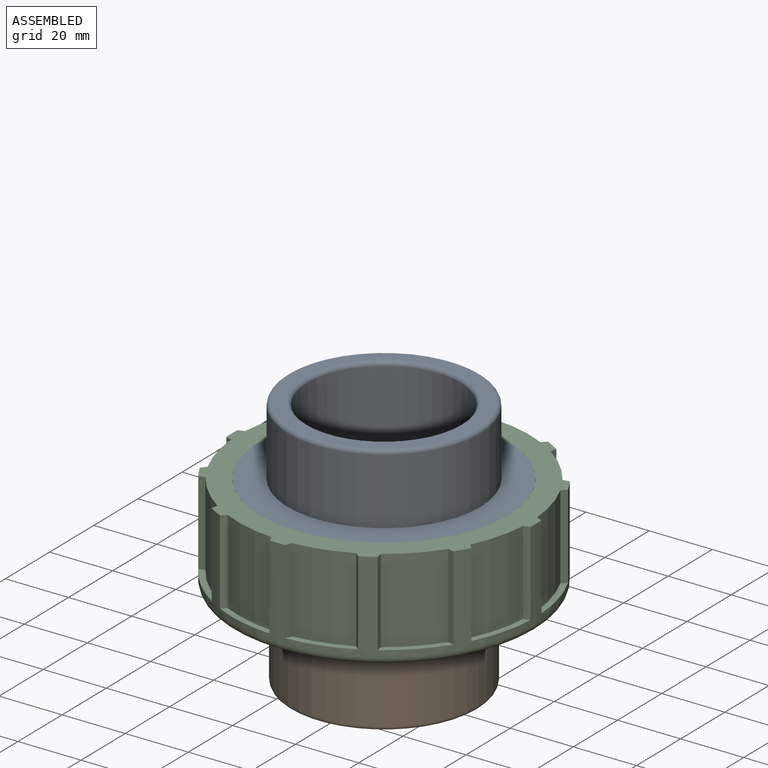
[diagram: assembled view]
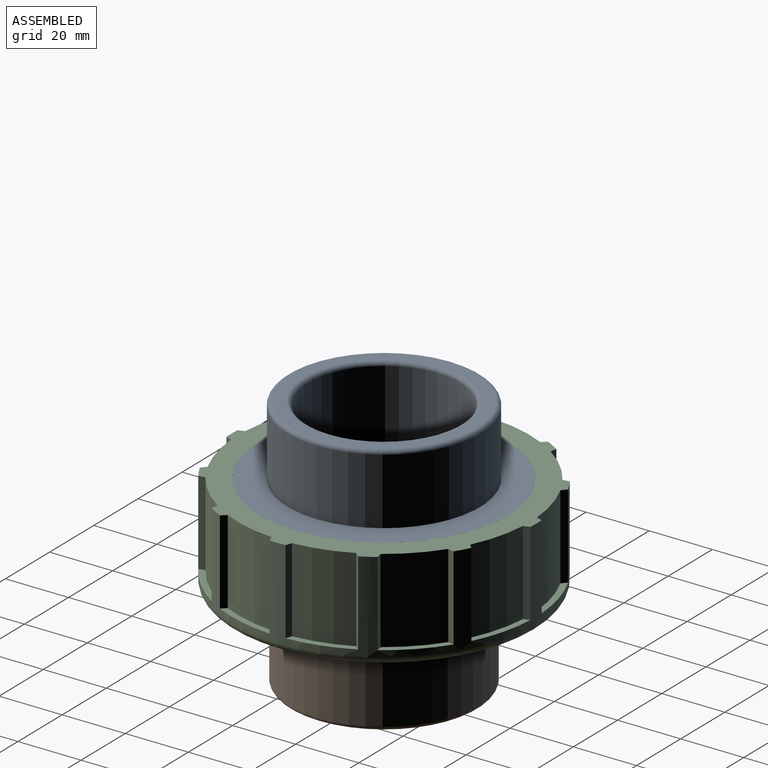
[diagram: assembled view, second angle]
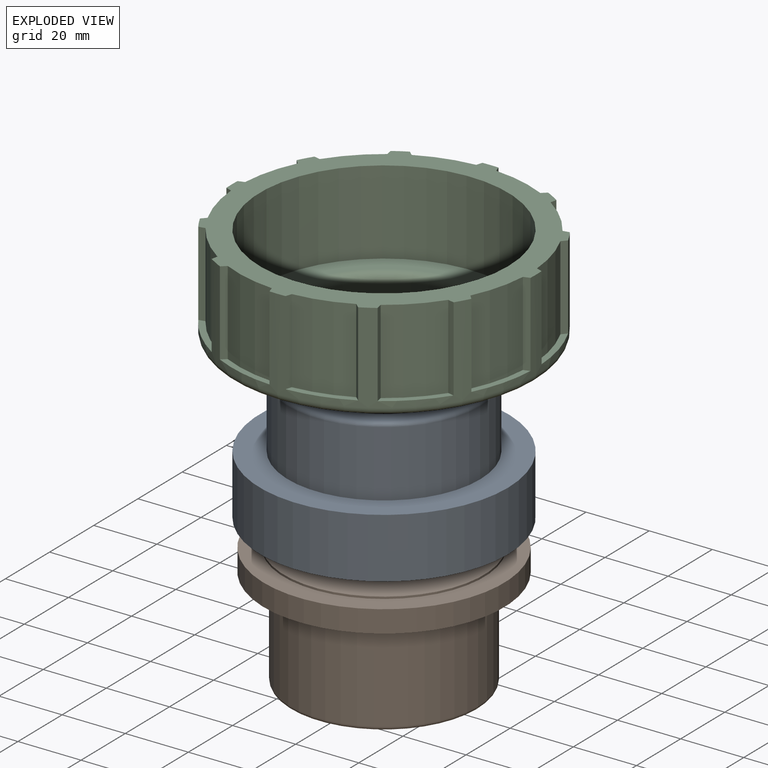
[diagram: exploded view]
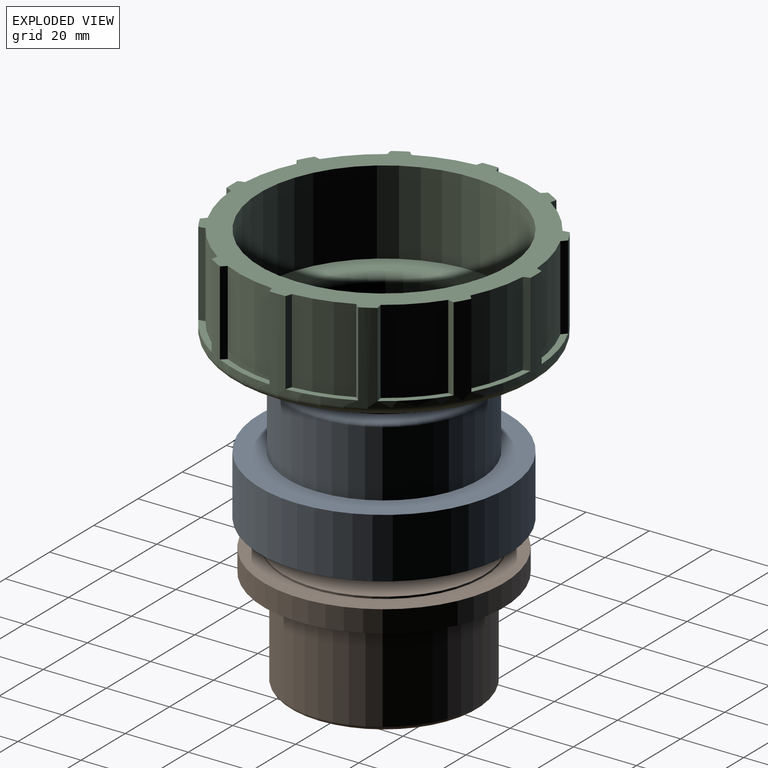
[diagram: exploded view, second angle]
ASSEMBLY  parts=3 mates=2
PART A: 14 faces, bbox 78.7x78.7x41.3 mm
  f0: plane 60.96x60.96mm, normal (0,0,-1), area 1925.5mm2, adj f1,f10
  f1: cylinder r=30.48mm len=60.96mm, axis (0,0,1), area 1945.8mm2, adj f0,f11
  f2: cylinder r=33.02mm len=66.04mm, axis (0,0,1), area 2107.9mm2, adj f3,f11
  f3: plane 78.74x78.74mm, normal (0,0,-1), area 1444.1mm2, adj f2,f4
  f4: cylinder r=39.37mm len=78.74mm, axis (0,0,1), area 4712.4mm2, adj f3,f5
  f5: plane 78.74x78.74mm, normal (0,0,1), area 1950.8mm2, adj f4,f6
  f6: cylinder r=30.48mm len=60.96mm, axis (0,0,1), area 4013.1mm2, adj f5,f12
  f7: plane 58.42x58.42mm, normal (0,0,1), area 653.7mm2, adj f12,f13
  f8: cylinder r=24.13mm len=48.26mm, axis (0,0,1), area 5102.5mm2, adj f9,f13
  f9: plane 48.26x48.26mm, normal (0,0,1), area 836.1mm2, adj f8,f10
  f10: cylinder r=17.78mm len=35.56mm, axis (0,0,1), area 709.4mm2, adj f0,f9
  f11: torus R=31.75mm, axis (0,0,-1), area 795.9mm2, adj f1,f2
  f12: torus R=29.21mm, axis (0,0,-1), area 376.3mm2, adj f6,f7
  f13: torus R=25.4mm, axis (0,0,-1), area 308.2mm2, adj f7,f8
PART B: 12 faces, bbox 76.2x76.2x39.4 mm
  f0: plane 63.5x63.5mm, normal (0,0,-1), area 2026.8mm2, adj f1,f9
  f1: cylinder r=31.75mm len=63.5mm, axis (0,0,1), area 126.7mm2, adj f0,f2
  f2: plane 76.2x76.2mm, normal (0,0,-1), area 1393.4mm2, adj f1,f3
  f3: cylinder r=38.1mm len=76.2mm, axis (0,0,1), area 1672.1mm2, adj f2,f4
  f4: plane 76.2x76.2mm, normal (0,0,1), area 1762.1mm2, adj f3,f5
  f5: cylinder r=29.84mm len=59.69mm, axis (0,0,1), area 5715.7mm2, adj f4,f10
  f6: plane 57.15x57.15mm, normal (0,0,1), area 538.4mm2, adj f10,f11
  f7: cylinder r=24.13mm len=48.26mm, axis (0,0,1), area 5198.8mm2, adj f8,f11
  f8: plane 48.26x48.26mm, normal (0,0,1), area 689.1mm2, adj f7,f9
  f9: cylinder r=19.05mm len=38.1mm, axis (0,0,1), area 456mm2, adj f0,f8
  f10: torus R=28.57mm, axis (0,0,1), area 368.3mm2, adj f5,f6
  f11: torus R=25.4mm, axis (0,0,1), area 308.2mm2, adj f6,f7
PART C: 57 faces, bbox 104.5x104.5x34.3 mm
  f0: cylinder r=46.35mm len=26.67mm, axis (0,0,-1), area 477.8mm2, adj f1,f37,f38,f53
  f1: plane 26.67x1.95mm, normal (0.31,-0.95,0), area 54.6mm2, adj f0,f29,f38,f53
  f2: plane 26.67x1.95mm, normal (0.31,0.95,0), area 54.6mm2, adj f3,f29,f38,f42
  f3: cylinder r=46.35mm len=26.67mm, axis (0,0,-1), area 477.8mm2, adj f2,f4,f38,f42
  f4: plane 26.67x1.52mm, normal (0.74,-0.67,0), area 54.6mm2, adj f3,f29,f38,f42
  f5: plane 26.67x2mm, normal (-0.21,0.98,0), area 54.6mm2, adj f6,f29,f38,f43
  f6: cylinder r=46.35mm len=26.67mm, axis (0,0,-1), area 477.8mm2, adj f5,f7,f38,f43
  f7: plane 26.67x2mm, normal (0.98,-0.21,0), area 54.6mm2, adj f6,f29,f38,f43
  f8: plane 26.67x1.52mm, normal (-0.67,0.74,0), area 54.6mm2, adj f9,f29,f38,f44
  f9: cylinder r=46.35mm len=26.67mm, axis (0,0,-1), area 477.8mm2, adj f8,f10,f38,f44
  f10: plane 26.67x1.95mm, normal (0.95,0.31,0), area 54.6mm2, adj f9,f29,f38,f44
  f11: plane 26.67x1.95mm, normal (-0.95,0.31,0), area 54.6mm2, adj f12,f29,f38,f45
  f12: cylinder r=46.35mm len=26.67mm, axis (0,0,-1), area 477.8mm2, adj f11,f13,f38,f45
  f13: plane 26.67x1.52mm, normal (0.67,0.74,0), area 54.6mm2, adj f12,f29,f38,f45
  f14: plane 26.67x2mm, normal (-0.98,-0.21,0), area 54.6mm2, adj f15,f29,f38,f46
  f15: cylinder r=46.35mm len=26.67mm, axis (0,0,-1), area 477.8mm2, adj f14,f16,f38,f46
  f16: plane 26.67x2mm, normal (0.21,0.98,0), area 54.6mm2, adj f15,f29,f38,f46
  f17: plane 26.67x1.52mm, normal (-0.74,-0.67,0), area 54.6mm2, adj f18,f29,f38,f47
  f18: cylinder r=46.35mm len=26.67mm, axis (0,0,-1), area 477.8mm2, adj f17,f19,f38,f47
  f19: plane 26.67x1.95mm, normal (-0.31,0.95,0), area 54.6mm2, adj f18,f29,f38,f47
  f20: plane 26.67x1.95mm, normal (-0.31,-0.95,0), area 54.6mm2, adj f21,f29,f38,f48
  f21: cylinder r=46.35mm len=26.67mm, axis (0,0,-1), area 477.8mm2, adj f20,f22,f38,f48
  f22: plane 26.67x1.52mm, normal (-0.74,0.67,0), area 54.6mm2, adj f21,f29,f38,f48
  f23: plane 26.67x2mm, normal (0.21,-0.98,0), area 54.6mm2, adj f24,f29,f38,f49
  f24: cylinder r=46.35mm len=26.67mm, axis (0,0,-1), area 477.8mm2, adj f23,f25,f38,f49
  f25: plane 26.67x2mm, normal (-0.98,0.21,0), area 54.6mm2, adj f24,f29,f38,f49
  f26: plane 26.67x1.52mm, normal (0.67,-0.74,0), area 54.6mm2, adj f27,f29,f38,f50
  f27: cylinder r=46.35mm len=26.67mm, axis (0,0,-1), area 477.8mm2, adj f26,f28,f38,f50
  f28: plane 26.67x1.95mm, normal (-0.95,-0.31,0), area 54.6mm2, adj f27,f29,f38,f50
  f29: cylinder r=48.26mm len=96.52mm, axis (0,0,-1), area 2208.8mm2, adj f1,f2,f4,f5,f7,f8,f10,f11
  f30: plane 26.67x1.95mm, normal (0.95,-0.31,0), area 54.6mm2, adj f29,f31,f38,f51
  f31: cylinder r=46.35mm len=26.67mm, axis (0,0,-1), area 477.8mm2, adj f30,f32,f38,f51
  f32: plane 26.67x1.52mm, normal (-0.67,-0.74,0), area 54.6mm2, adj f29,f31,f38,f51
  f33: plane 26.67x2mm, normal (0.98,0.21,0), area 54.6mm2, adj f29,f34,f38,f52
  f34: cylinder r=46.35mm len=26.67mm, axis (0,0,-1), area 477.8mm2, adj f33,f35,f38,f52
  f35: plane 26.67x2mm, normal (-0.21,-0.98,0), area 54.6mm2, adj f29,f34,f38,f52
  f36: cylinder r=39.37mm len=78.74mm, axis (0,0,-1), area 6597.3mm2, adj f38,f41
  f37: plane 26.67x1.52mm, normal (0.74,0.67,0), area 54.6mm2, adj f0,f29,f38,f53
  f38: plane 96.52x96.52mm, normal (0,0,1), area 2011.9mm2, adj f0,f1,f2,f3,f4,f5,f6,f7
  f39: plane 71.12x71.12mm, normal (0,0,-1), area 1054mm2, adj f40,f54
  f40: cylinder r=30.48mm len=60.96mm, axis (0,0,-1), area 972.9mm2, adj f39,f56
  f41: plane 78.74x78.74mm, normal (0,0,1), area 1444.1mm2, adj f36,f56
  f42: plane 19.36x6.56mm, normal (0,0,1), area 36.3mm2, adj f2,f3,f4,f29
  f43: plane 14.59x14.59mm, normal (0,0,1), area 36.3mm2, adj f5,f6,f7,f29
  f44: plane 19.36x6.56mm, normal (0,0,1), area 36.3mm2, adj f8,f9,f10,f29
  f45: plane 19.36x6.56mm, normal (0,0,1), area 36.3mm2, adj f11,f12,f13,f29
  f46: plane 14.59x14.59mm, normal (0,0,1), area 36.3mm2, adj f14,f15,f16,f29
  f47: plane 19.36x6.56mm, normal (0,0,1), area 36.3mm2, adj f17,f18,f19,f29
  f48: plane 19.36x6.56mm, normal (0,0,1), area 36.3mm2, adj f20,f21,f22,f29
  f49: plane 14.59x14.59mm, normal (0,0,1), area 36.3mm2, adj f23,f24,f25,f29
  f50: plane 19.36x6.56mm, normal (0,0,1), area 36.3mm2, adj f26,f27,f28,f29
  f51: plane 19.36x6.56mm, normal (0,0,1), area 36.3mm2, adj f29,f30,f31,f32
  f52: plane 14.59x14.59mm, normal (0,0,1), area 36.3mm2, adj f29,f33,f34,f35
  f53: plane 19.36x6.56mm, normal (0,0,1), area 36.3mm2, adj f0,f1,f29,f37
  f54: cone r=48.26mm half-angle=73.3deg, axis (0,0,1), area 2929.2mm2, adj f39,f55
  f55: torus R=45.72mm, axis (0,0,-1), area 972.3mm2, adj f29,f54
  f56: torus R=33.02mm, axis (0,0,1), area 787.2mm2, adj f40,f41
PLACE A t=(114.3,0,15.24)mm
PLACE B rot(axis=(0,1,0),180deg) t=(114.3,0,15.24)mm fixed
PLACE C at identity
MATE fastened A.f11 <-> B.f1  axis (0,0,-1) through (0,0,15.24)mm
MATE fastened B.f1 <-> C.f40  axis (0,0,-1) through (0,0,7.62)mm
